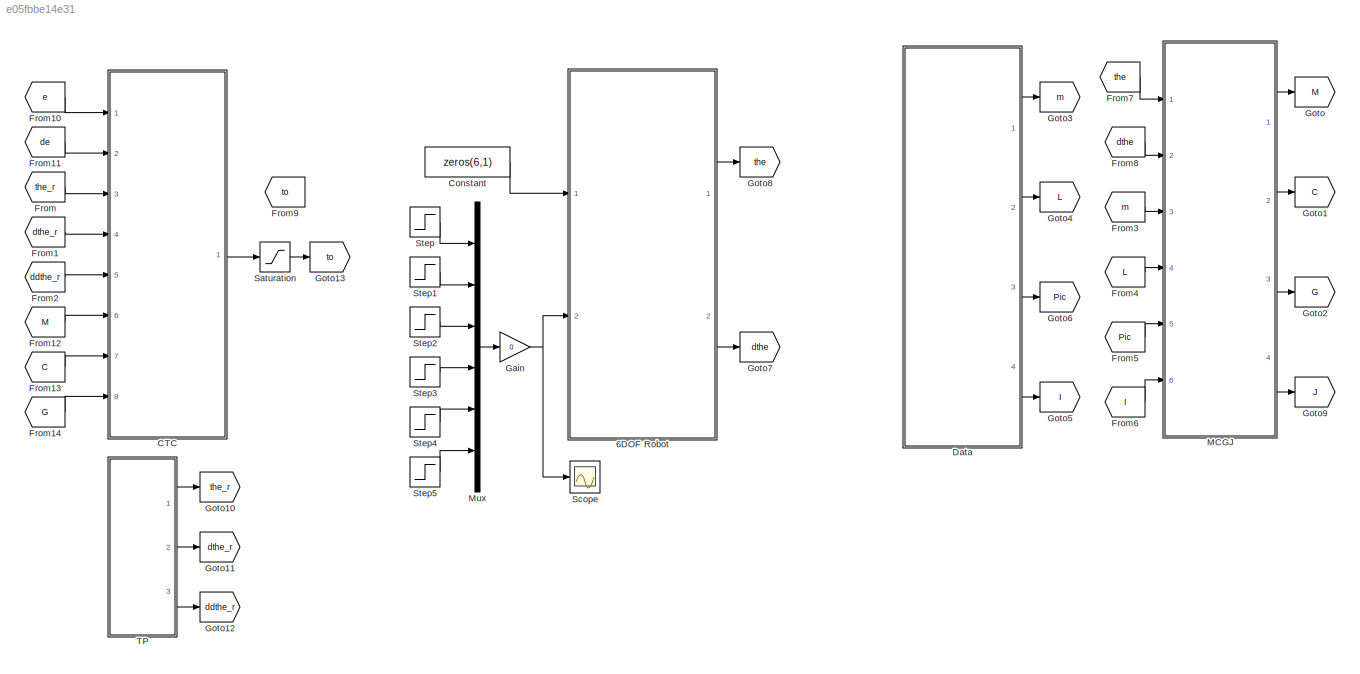
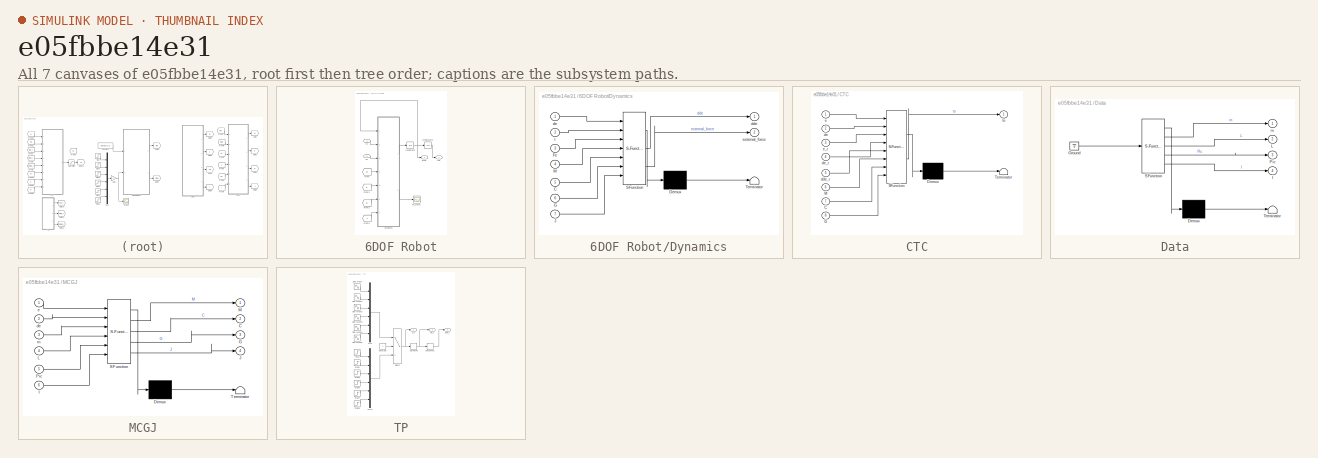
[diagram: thumbnail index - all 7 canvases of the model, root first then tree order]
MODEL slx_e05fbbe14e31
KIND model
CONFIG AbsTol = auto
CONFIG EnableMultiTasking = off
CONFIG FixedStep = 0.01
CONFIG MaxStep = auto
CONFIG MinStep = auto
CONFIG RelTol = 1e-3
CONFIG SampleTimeConstraint = Unconstrained
CONFIG SolverName = FixedStepAuto
CONFIG StartTime = 0.0
CONFIG StopTime = 30
BLOCK [SubSystem] 6DOF Robot
  Ports = [2, 2]
  RequestExecContextInheritance = off
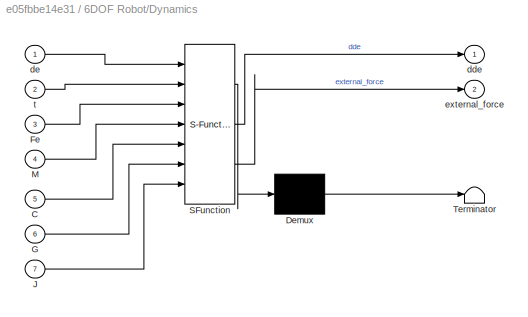
BLOCK [SubSystem] 6DOF Robot/Dynamics
  ErrorFcn = Stateflow.Translate.translate
  PermitHierarchicalResolution = ExplicitOnly
  Ports = [7, 2]
  RequestExecContextInheritance = off
  SFBlockType = MATLAB Function
  TreatAsAtomicUnit = on
BLOCK [Demux] 6DOF Robot/Dynamics/ Demux 
  Outputs = 1
  Ports = [1, 1]
BLOCK [S-Function] 6DOF Robot/Dynamics/ SFunction 
  EnableBusSupport = off
  FunctionName = sf_sfun
  PortCounts = [7 3]
  Ports = [7, 3]
  SFcnIsStateOwnerBlock = off
  SFunctionDeploymentMode = off
  Tag = Stateflow S-Function 1
BLOCK [Terminator] 6DOF Robot/Dynamics/ Terminator 
BLOCK [Inport] 6DOF Robot/Dynamics/C
  Port = 5
BLOCK [Inport] 6DOF Robot/Dynamics/Fe
  Port = 3
BLOCK [Inport] 6DOF Robot/Dynamics/G
  Port = 6
BLOCK [Inport] 6DOF Robot/Dynamics/J
  Port = 7
BLOCK [Inport] 6DOF Robot/Dynamics/M
  Port = 4
BLOCK [Outport] 6DOF Robot/Dynamics/dde
  VectorParamsAs1DForOutWhenUnconnected = off
BLOCK [Inport] 6DOF Robot/Dynamics/de
BLOCK [Outport] 6DOF Robot/Dynamics/external_force
  Port = 2
  VectorParamsAs1DForOutWhenUnconnected = off
BLOCK [Inport] 6DOF Robot/Dynamics/t
  Port = 2
BLOCK [Inport] 6DOF Robot/Fe
  Port = 2
BLOCK [From] 6DOF Robot/From
  GotoTag = M
  TagVisibility = global
BLOCK [From] 6DOF Robot/From1
  GotoTag = C
  TagVisibility = global
BLOCK [From] 6DOF Robot/From2
  GotoTag = G
  TagVisibility = global
BLOCK [From] 6DOF Robot/From9
  GotoTag = J
  TagVisibility = global
BLOCK [Integrator] 6DOF Robot/Integrator
  InitialCondition = [pi/6;pi/6;pi/6;pi/6;pi/6;pi/6]
  LowerSaturationLimit = -pi
  Ports = [1, 1]
  UpperSaturationLimit = pi
BLOCK [Integrator] 6DOF Robot/Integrator2
  InitialCondition = [pi/6;pi/6;pi/6;pi/6;pi/6;pi/6]
  LowerSaturationLimit = -[170;120;90;120;60;180]*pi/180
  Ports = [1, 1]
  UpperSaturationLimit = [170;120;90;120;60;180]*pi/180
BLOCK [Outport] 6DOF Robot/dthe
  Port = 2
  VectorParamsAs1DForOutWhenUnconnected = off
BLOCK [Scope] 6DOF Robot/ex_force
  Floating = off
  NumInputPorts = 1
  Ports = [1]
  ScopeSpecificationString = Simulink.scopes.TimeScopeBlockCfg('CurrentConfiguration', extmgr.ConfigurationSet(extmgr.Configuration('Core','General UI',true),extmgr.Configuration('Core','Source UI',true),extmgr.Configuration('Sources','WiredSimulink',true,'DataLoggingVariableName','ScopeData1'),extmgr.Configuration('Visuals','Time Domain',true,'SerializedDisplays',{struct('MinYLimReal','4.23599','MaxYLimReal','6.23599','YLabe...<+1522ch>
BLOCK [Outport] 6DOF Robot/the
  VectorParamsAs1DForOutWhenUnconnected = off
BLOCK [Inport] 6DOF Robot/to
BLOCK [SubSystem] CTC
  Commented = on
  ErrorFcn = Stateflow.Translate.translate
  PermitHierarchicalResolution = ExplicitOnly
  Ports = [8, 1]
  RequestExecContextInheritance = off
  SFBlockType = MATLAB Function
  TreatAsAtomicUnit = on
BLOCK [Demux] CTC/ Demux 
  Outputs = 1
  Ports = [1, 1]
BLOCK [S-Function] CTC/ SFunction 
  EnableBusSupport = off
  FunctionName = sf_sfun
  PortCounts = [8 2]
  Ports = [8, 2]
  SFcnIsStateOwnerBlock = off
  SFunctionDeploymentMode = off
  Tag = Stateflow S-Function 4
BLOCK [Terminator] CTC/ Terminator 
BLOCK [Inport] CTC/C
  Port = 7
BLOCK [Inport] CTC/G
  Port = 8
BLOCK [Inport] CTC/M
  Port = 6
BLOCK [Inport] CTC/dde_r
  Port = 5
BLOCK [Inport] CTC/de
  Port = 2
BLOCK [Inport] CTC/de_r
  Port = 4
BLOCK [Inport] CTC/e
BLOCK [Inport] CTC/e_r
  Port = 3
BLOCK [Outport] CTC/to
  VectorParamsAs1DForOutWhenUnconnected = off
BLOCK [Constant] Constant
  Value = zeros(6,1)
BLOCK [SubSystem] Data
  ErrorFcn = Stateflow.Translate.translate
  PermitHierarchicalResolution = ExplicitOnly
  Ports = [0, 4]
  RequestExecContextInheritance = off
  SFBlockType = MATLAB Function
  TreatAsAtomicUnit = on
BLOCK [Demux] Data/ Demux 
  Outputs = 1
  Ports = [1, 1]
BLOCK [Ground] Data/ Ground 
BLOCK [S-Function] Data/ SFunction 
  EnableBusSupport = off
  FunctionName = sf_sfun
  PortCounts = [1 5]
  Ports = [1, 5]
  SFcnIsStateOwnerBlock = off
  SFunctionDeploymentMode = off
  Tag = Stateflow S-Function 3
BLOCK [Terminator] Data/ Terminator 
BLOCK [Outport] Data/I
  Port = 4
  VectorParamsAs1DForOutWhenUnconnected = off
BLOCK [Outport] Data/L
  Port = 2
  VectorParamsAs1DForOutWhenUnconnected = off
BLOCK [Outport] Data/Pic
  Port = 3
  VectorParamsAs1DForOutWhenUnconnected = off
BLOCK [Outport] Data/m
  VectorParamsAs1DForOutWhenUnconnected = off
BLOCK [From] From
  Commented = on
  GotoTag = the_r
BLOCK [From] From1
  Commented = on
  GotoTag = dthe_r
BLOCK [From] From10
  Commented = on
  GotoTag = e
BLOCK [From] From11
  Commented = on
  GotoTag = de
BLOCK [From] From12
  Commented = on
  GotoTag = M
BLOCK [From] From13
  Commented = on
  GotoTag = C
BLOCK [From] From14
  Commented = on
  GotoTag = G
BLOCK [From] From2
  Commented = on
  GotoTag = ddthe_r
BLOCK [From] From3
  GotoTag = m
BLOCK [From] From4
  GotoTag = L
BLOCK [From] From5
  GotoTag = Pic
BLOCK [From] From6
  GotoTag = I
BLOCK [From] From7
  GotoTag = the
BLOCK [From] From8
  GotoTag = dthe
BLOCK [From] From9
  Commented = on
  GotoTag = to
BLOCK [Gain] Gain
  Gain = 0
BLOCK [Goto] Goto
  GotoTag = M
  TagVisibility = global
BLOCK [Goto] Goto1
  GotoTag = C
  TagVisibility = global
BLOCK [Goto] Goto10
  Commented = on
  GotoTag = the_r
BLOCK [Goto] Goto11
  Commented = on
  GotoTag = dthe_r
BLOCK [Goto] Goto12
  Commented = on
  GotoTag = ddthe_r
BLOCK [Goto] Goto13
  Commented = on
  GotoTag = to
BLOCK [Goto] Goto2
  GotoTag = G
  TagVisibility = global
BLOCK [Goto] Goto3
  GotoTag = m
BLOCK [Goto] Goto4
  GotoTag = L
BLOCK [Goto] Goto5
  GotoTag = I
BLOCK [Goto] Goto6
  GotoTag = Pic
BLOCK [Goto] Goto7
  GotoTag = dthe
BLOCK [Goto] Goto8
  GotoTag = the
BLOCK [Goto] Goto9
  GotoTag = J
  TagVisibility = global
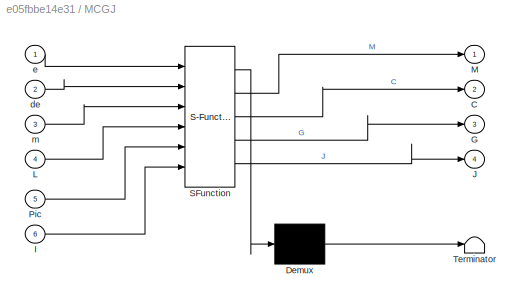
BLOCK [SubSystem] MCGJ
  ErrorFcn = Stateflow.Translate.translate
  PermitHierarchicalResolution = ExplicitOnly
  Ports = [6, 4]
  RequestExecContextInheritance = off
  SFBlockType = MATLAB Function
  TreatAsAtomicUnit = on
BLOCK [Demux] MCGJ/ Demux 
  Outputs = 1
  Ports = [1, 1]
BLOCK [S-Function] MCGJ/ SFunction 
  EnableBusSupport = off
  FunctionName = sf_sfun
  PortCounts = [6 5]
  Ports = [6, 5]
  SFcnIsStateOwnerBlock = off
  SFunctionDeploymentMode = off
  Tag = Stateflow S-Function 2
BLOCK [Terminator] MCGJ/ Terminator 
BLOCK [Outport] MCGJ/C
  Port = 2
  VectorParamsAs1DForOutWhenUnconnected = off
BLOCK [Outport] MCGJ/G
  Port = 3
  VectorParamsAs1DForOutWhenUnconnected = off
BLOCK [Inport] MCGJ/I
  Port = 6
BLOCK [Outport] MCGJ/J
  Port = 4
  VectorParamsAs1DForOutWhenUnconnected = off
BLOCK [Inport] MCGJ/L
  Port = 4
BLOCK [Outport] MCGJ/M
BLOCK [Inport] MCGJ/Pic
  Port = 5
BLOCK [Inport] MCGJ/de
  Port = 2
BLOCK [Inport] MCGJ/e
BLOCK [Inport] MCGJ/m
  Port = 3
BLOCK [Mux] Mux
  DisplayOption = bar
  Inputs = 6
  Ports = [6, 1]
BLOCK [Saturate] Saturation
  Commented = on
  LowerLimit = -500
  UpperLimit = 500
BLOCK [Scope] Scope
  Floating = off
  NumInputPorts = 1
  Ports = [1]
  ScopeSpecificationString = Simulink.scopes.TimeScopeBlockCfg('CurrentConfiguration', extmgr.ConfigurationSet(extmgr.Configuration('Core','General UI',true),extmgr.Configuration('Core','Source UI',true),extmgr.Configuration('Sources','WiredSimulink',true,'DataLoggingVariableName','ScopeData1'),extmgr.Configuration('Visuals','Time Domain',true,'SerializedDisplays',{struct('MinYLimReal','-1.00000','MaxYLimReal','1.00000','YLab...<+1410ch>
BLOCK [Step] Step
  After = 8
  SampleTime = 0
  Time = 10
BLOCK [Step] Step1
  After = 8
  SampleTime = 0
  Time = 10
BLOCK [Step] Step2
  After = 8
  SampleTime = 0
  Time = 10
BLOCK [Step] Step3
  After = 8
  SampleTime = 0
  Time = 10
BLOCK [Step] Step4
  After = 8
  SampleTime = 0
  Time = 10
BLOCK [Step] Step5
  After = 8
  SampleTime = 0
  Time = 10
BLOCK [SubSystem] TP
  Commented = on
  Ports = [0, 3]
  RequestExecContextInheritance = off
BLOCK [Constant] TP/Constant
BLOCK [Derivative] TP/Derivative
BLOCK [Derivative] TP/Derivative1
BLOCK [Mux] TP/Mux
  DisplayOption = bar
  Inputs = 6
  Ports = [6, 1]
BLOCK [Mux] TP/Mux1
  DisplayOption = bar
  Inputs = 6
  Ports = [6, 1]
BLOCK [Sin] TP/Sine Wave
  Amplitude = pi/6
  Frequency = 2*pi*0.2
  Ports = [0, 1]
  SampleTime = 0
BLOCK [Sin] TP/Sine Wave1
  Amplitude = pi/6
  Frequency = 2*pi*0.2
  Ports = [0, 1]
  SampleTime = 0
BLOCK [Sin] TP/Sine Wave2
  Amplitude = pi/6
  Frequency = 2*pi*0.2
  Ports = [0, 1]
  SampleTime = 0
BLOCK [Sin] TP/Sine Wave3
  Amplitude = pi/6
  Frequency = 2*pi*0.2
  Ports = [0, 1]
  SampleTime = 0
BLOCK [Sin] TP/Sine Wave4
  Amplitude = pi/6
  Frequency = 2*pi*0.2
  Ports = [0, 1]
  SampleTime = 0
BLOCK [Sin] TP/Sine Wave5
  Amplitude = pi/6
  Frequency = 2*pi*0.2
  Ports = [0, 1]
  SampleTime = 0
BLOCK [Step] TP/Step
  After = pi/6
  SampleTime = 0
BLOCK [Step] TP/Step1
  After = pi/6
  SampleTime = 0
BLOCK [Step] TP/Step2
  After = pi/6
  SampleTime = 0
BLOCK [Step] TP/Step3
  After = pi/6
  SampleTime = 0
BLOCK [Step] TP/Step4
  After = pi/6
  SampleTime = 0
BLOCK [Step] TP/Step5
  After = pi/6
  SampleTime = 0
BLOCK [Switch] TP/Switch
  Criteria = u2 > Threshold
  InputSameDT = off
  SaturateOnIntegerOverflow = off
BLOCK [Outport] TP/dde_r
  Port = 3
  VectorParamsAs1DForOutWhenUnconnected = off
BLOCK [Outport] TP/de_r
  Port = 2
  VectorParamsAs1DForOutWhenUnconnected = off
BLOCK [Outport] TP/e_r
  VectorParamsAs1DForOutWhenUnconnected = off
LINE 6DOF Robot/Dynamics:1 -> 6DOF Robot/Integrator:1
LINE 6DOF Robot/Dynamics:2 -> 6DOF Robot/ex_force:1
LINE 6DOF Robot/Fe:1 -> 6DOF Robot/Dynamics:3
LINE 6DOF Robot/From1:1 -> 6DOF Robot/Dynamics:5
LINE 6DOF Robot/From2:1 -> 6DOF Robot/Dynamics:6
LINE 6DOF Robot/From9:1 -> 6DOF Robot/Dynamics:7
LINE 6DOF Robot/From:1 -> 6DOF Robot/Dynamics:4
LINE 6DOF Robot/Integrator2:1 -> 6DOF Robot/the:1
NET 6DOF Robot/Integrator:1 -> 6DOF Robot/Dynamics:1, 6DOF Robot/Integrator2:1, 6DOF Robot/dthe:1
LINE 6DOF Robot/to:1 -> 6DOF Robot/Dynamics:2
LINE 6DOF Robot:1 -> Goto8:1
LINE 6DOF Robot:2 -> Goto7:1
LINE CTC:1 -> Saturation:1
LINE Constant:1 -> 6DOF Robot:1
LINE Data:1 -> Goto3:1
LINE Data:2 -> Goto4:1
LINE Data:3 -> Goto6:1
LINE Data:4 -> Goto5:1
LINE From10:1 -> CTC:1
LINE From11:1 -> CTC:2
LINE From12:1 -> CTC:6
LINE From13:1 -> CTC:7
LINE From14:1 -> CTC:8
LINE From1:1 -> CTC:4
LINE From2:1 -> CTC:5
LINE From3:1 -> MCGJ:3
LINE From4:1 -> MCGJ:4
LINE From5:1 -> MCGJ:5
LINE From6:1 -> MCGJ:6
LINE From7:1 -> MCGJ:1
LINE From8:1 -> MCGJ:2
LINE From:1 -> CTC:3
NET Gain:1 -> 6DOF Robot:2, Scope:1
LINE MCGJ:1 -> Goto:1
LINE MCGJ:2 -> Goto1:1
LINE MCGJ:3 -> Goto2:1
LINE MCGJ:4 -> Goto9:1
LINE Mux:1 -> Gain:1
LINE Saturation:1 -> Goto13:1
LINE Step1:1 -> Mux:2
LINE Step2:1 -> Mux:3
LINE Step3:1 -> Mux:4
LINE Step4:1 -> Mux:5
LINE Step5:1 -> Mux:6
LINE Step:1 -> Mux:1
LINE TP/Constant:1 -> TP/Switch:2
LINE TP/Derivative1:1 -> TP/dde_r:1
NET TP/Derivative:1 -> TP/Derivative1:1, TP/de_r:1
LINE TP/Mux1:1 -> TP/Switch:3
LINE TP/Mux:1 -> TP/Switch:1
LINE TP/Sine Wave1:1 -> TP/Mux:2
LINE TP/Sine Wave2:1 -> TP/Mux:3
LINE TP/Sine Wave3:1 -> TP/Mux:4
LINE TP/Sine Wave4:1 -> TP/Mux:5
LINE TP/Sine Wave5:1 -> TP/Mux:6
LINE TP/Sine Wave:1 -> TP/Mux:1
LINE TP/Step1:1 -> TP/Mux1:2
LINE TP/Step2:1 -> TP/Mux1:3
LINE TP/Step3:1 -> TP/Mux1:4
LINE TP/Step4:1 -> TP/Mux1:5
LINE TP/Step5:1 -> TP/Mux1:6
LINE TP/Step:1 -> TP/Mux1:1
NET TP/Switch:1 -> TP/Derivative:1, TP/e_r:1
LINE TP:1 -> Goto10:1
LINE TP:2 -> Goto11:1
LINE TP:3 -> Goto12:1
note: NET lines group one-source signal fan-out (src -> all destinations, sorted); 1:1 wires keep LINE
CHART 6DOF Robot/Dynamics states=1 transitions=1
  STATE_LABEL 'eML_blk_kernel()'
  STATE_LABEL "SCRIPT:\nfunction [dde,external_force] = DYN_6DOF(de,t,Fe,M,C,G,J)\n%%\nFc = diag([0,0,0,0,0,0]);\nFv = 10* diag([1,1,1,1,1,1]);\nexternal_force = Fc*sign(de) + Fv*de + J.'*Fe;\n%%\ndde = inv(M)*(t - C*de - G - external_force);"
CHART MCGJ states=1 transitions=1
  STATE_LABEL 'eML_blk_kernel()'
  STATE_LABEL 'SCRIPT:\nfunction [M,C,G,J] = FindMCGJ(e,de,m,L,Pic,I)\ne1 = e(1); e2 = e(2); e3 = e(3);\ne4 = e(4); e5 = e(5); e6 = e(6);\nde1 = de(1); de2 = de(2); de3 = de(3);\nde4 = de(4); de5 = de(5); de6 = de(6);\nx1 = Pic(1,1); y1 = Pic(1,2); z1 = Pic(1,3);\nx2 = Pic(2,1); y2 = Pic(2,2); z2 = Pic(2,3);\nx3 = Pic(3,1); y3 = Pic(3,2); z3 = Pic(3,3);\nx4 = Pic(4,1); y4 = Pic(4,2); z4 = Pic(4,3);\nx5 = Pic(5,1); y5 = Pi...<+3608ch>'
CHART Data states=1 transitions=1
  STATE_LABEL 'eML_blk_kernel()'
  STATE_LABEL 'SCRIPT:\nfunction [m,L,Pic,I] = ExtractData()\na1=0.075; a2=0.270; a3=0.090; d1=0.335; d4=0.295; d7=0.08;\nm1 = 5.6511; m2 = 4.6061; m3 = 4.2963; m4 = 1.9151; m5 = 0.3399; m6 = 0.0714;\nm = [m1 m2 m3 m4 m5 m6];\nL = [a1 a2 a3 d1 d4 d7];\n% Pic = zeros(6,3);\n% I = zeros(6,6);\nPic = [0.0373,  -0.0076,   0.1064;\n       0.1127,   0.0065,   0.0648;\n       0.0447,   0.0125,  -0.0554;\n       0.0006,   0.0052, ...<+1092ch>'
CHART CTC states=1 transitions=1
  STATE_LABEL 'eML_blk_kernel()'
  STATE_LABEL 'SCRIPT:\nfunction to = fcn(e,de,e_r,de_r,dde_r,M,C,G)\n%% Control:\n% Controler parameters\n% % with noise\n\n% without noise\nKv = 30*diag([1,1,1,1,1,1]);\nKp = 30*diag([1,1,1,1,1,1]);\n\n% Designed sliding mode control\nE = e_r - e;\ndE = de_r - de;\nalpha = M;\nbeta = C*de + G;\ndto = dde_r + Kv*dE + Kp*E;\nto = alpha*dto + beta;\n'
CHART  states=0 transitions=0
CHART  states=0 transitions=0
CHART  states=0 transitions=0
CHART  states=0 transitions=0
